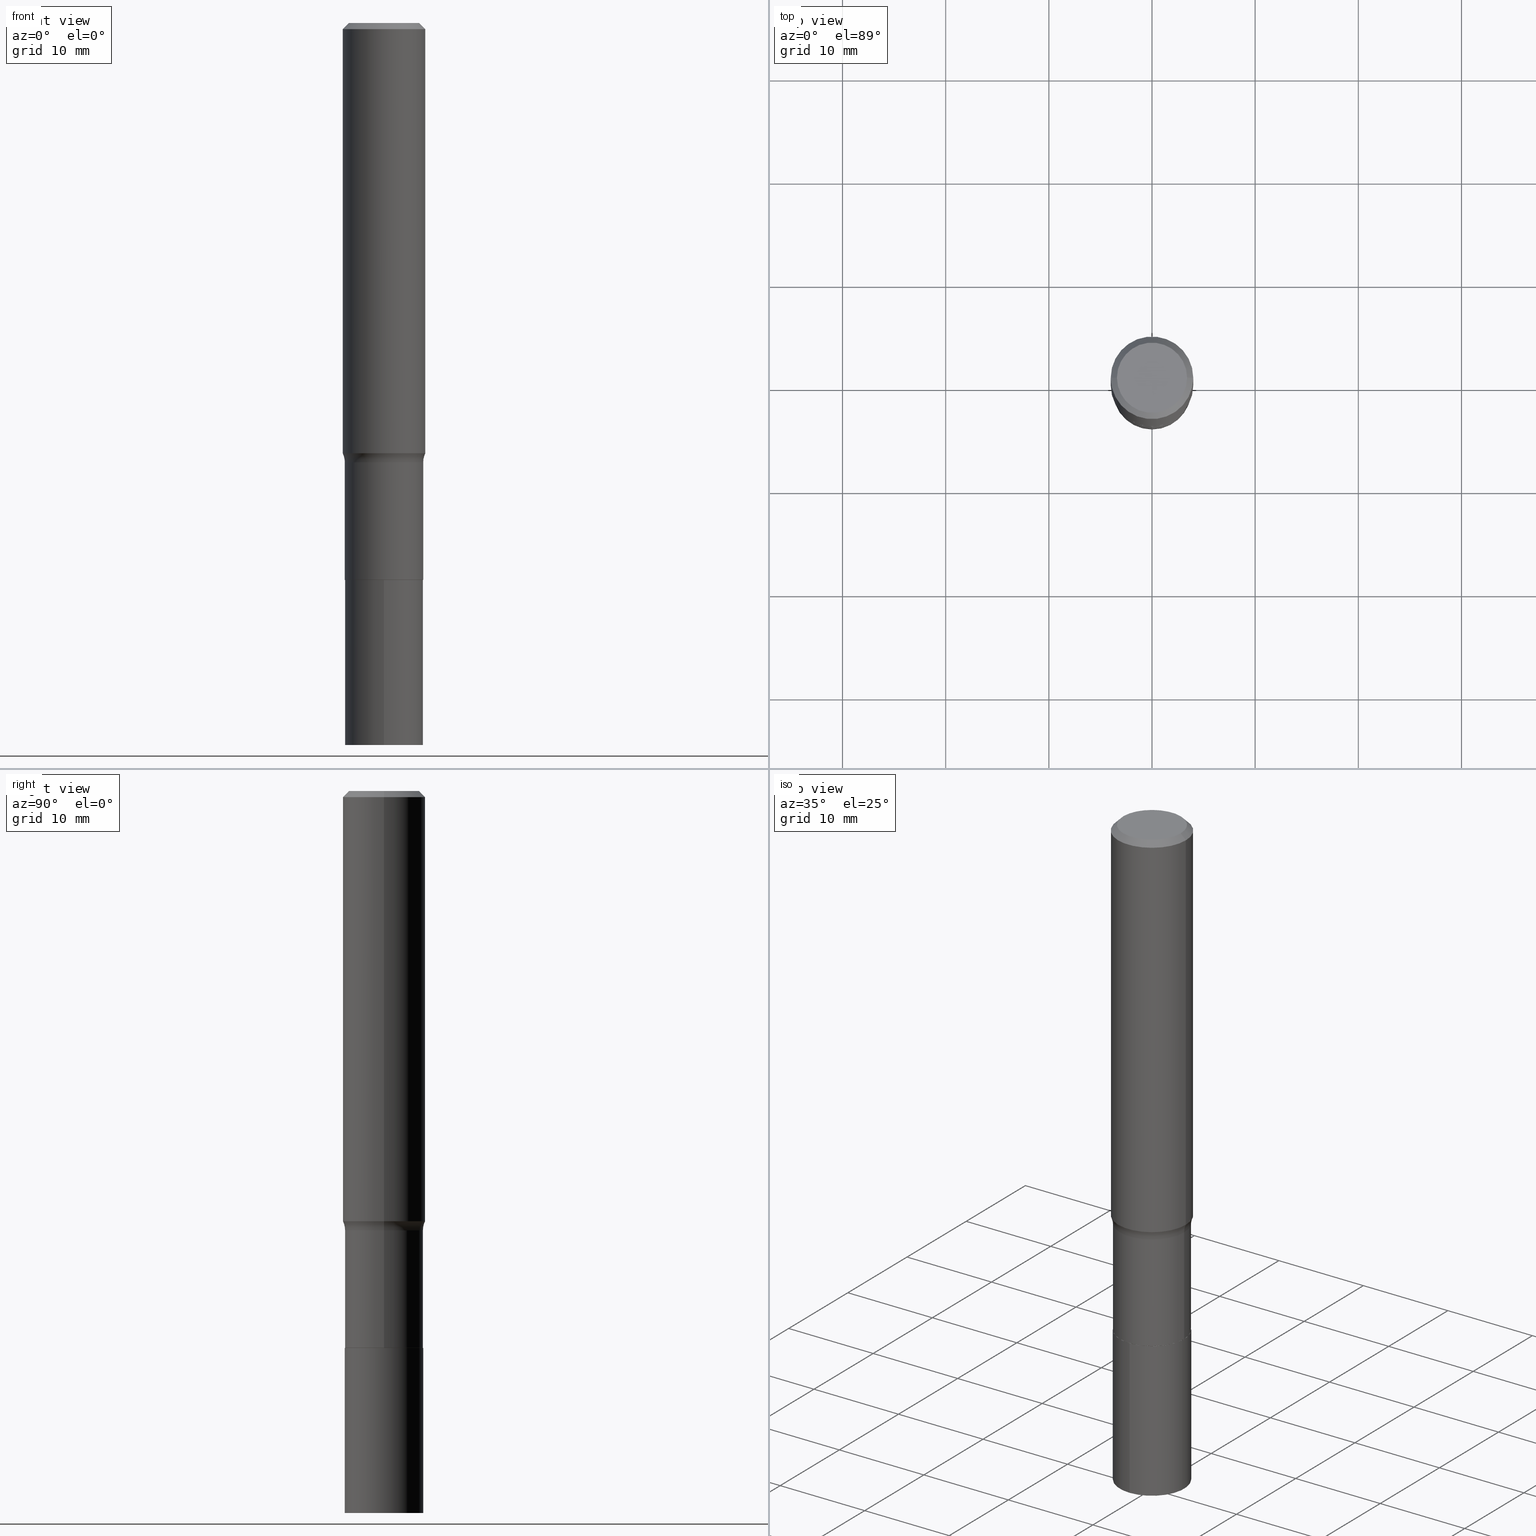
[diagram: canonical four-view strip — front | top / right | iso, engineering-drawing reading convention]
A machine part, canonical four-view strip (front | top / right | iso — engineering-drawing reading convention). The complete STEP part file that produces these views, byte-faithful:
ISO-10303-21;
HEADER;
FILE_DESCRIPTION (( 'STEP AP203' ),
    '1' );
FILE_NAME ('67123.STEP',
    '2024-04-19T15:56:53',
    ( '' ),
    ( '' ),
    'SwSTEP 2.0',
    'SolidWorks 2023',
    '' );
FILE_SCHEMA (( 'CONFIG_CONTROL_DESIGN' ));
ENDSEC;

DATA;
#1 = AXIS2_PLACEMENT_3D ( 'NONE', #248, #313, #391 ) ;
#2 = AXIS2_PLACEMENT_3D ( 'NONE', #367, #444, #231 ) ;
#3 = CYLINDRICAL_SURFACE ( 'NONE', #328, 0.1496000000000000107 ) ;
#4 = DIRECTION ( 'NONE',  ( 6.982962677686265922E-15, 1.000000000000000000, -3.490985253093755902E-15 ) ) ;
#5 = EDGE_CURVE ( 'NONE', #71, #396, #48, .T. ) ;
#6 = ORIENTED_EDGE ( 'NONE', *, *, #347, .T. ) ;
#7 = AXIS2_PLACEMENT_3D ( 'NONE', #428, #355, #100 ) ;
#8 = EDGE_LOOP ( 'NONE', ( #465, #324, #400, #82 ) ) ;
#9 = EDGE_CURVE ( 'NONE', #314, #416, #275, .T. ) ;
#10 = CALENDAR_DATE ( 2024, 19, 4 ) ;
#11 = CARTESIAN_POINT ( 'NONE',  ( -1.002970424325035327E-46, 1.431975951230899223E-32, 4.101342130344493665E-18 ) ) ;
#12 = PERSON_AND_ORGANIZATION ( #64, #301 ) ;
#13 =( LENGTH_UNIT ( ) NAMED_UNIT ( * ) SI_UNIT ( $, .METRE. ) );
#14 = ADVANCED_FACE ( 'NONE', ( #234 ), #419, .F. ) ;
#15 = CIRCLE ( 'NONE', #65, 0.1575000000000000011 ) ;
#16 = AXIS2_PLACEMENT_3D ( 'NONE', #349, #31, #140 ) ;
#17 = EDGE_CURVE ( 'NONE', #56, #340, #242, .T. ) ;
#18 = APPROVAL_STATUS ( 'not_yet_approved' ) ;
#19 = ADVANCED_FACE ( 'NONE', ( #129 ), #281, .F. ) ;
#20 = VERTEX_POINT ( 'NONE', #323 ) ;
#21 = AXIS2_PLACEMENT_3D ( 'NONE', #429, #68, #319 ) ;
#22 = VECTOR ( 'NONE', #354, 39.37007874015748143 ) ;
#23 = CC_DESIGN_PERSON_AND_ORGANIZATION_ASSIGNMENT ( #12, #307, ( #58 ) ) ;
#24 = DATE_TIME_ROLE ( 'creation_date' ) ;
#25 = PRODUCT_DEFINITION_SHAPE ( 'NONE', 'NONE',  #309 ) ;
#26 = DIRECTION ( 'NONE',  ( 1.000000000000000000, -6.982962677686266711E-15, 4.876170806578254279E-29 ) ) ;
#27 = ORIENTED_EDGE ( 'NONE', *, *, #202, .T. ) ;
#28 = CARTESIAN_POINT ( 'NONE',  ( 6.739685724306814341E-29, -9.621860887695710828E-15, -2.755900000000000460 ) ) ;
#29 = DIRECTION ( 'NONE',  ( -2.445468806185136597E-29, 3.491481338843145583E-15, 1.000000000000000000 ) ) ;
#30 = EDGE_LOOP ( 'NONE', ( #139, #194 ) ) ;
#31 = DIRECTION ( 'NONE',  ( -2.445468806185136597E-29, 3.491481338843145583E-15, 1.000000000000000000 ) ) ;
#32 = AXIS2_PLACEMENT_3D ( 'NONE', #96, #123, #26 ) ;
#33 = AXIS2_PLACEMENT_3D ( 'NONE', #193, #449, #114 ) ;
#34 = FACE_OUTER_BOUND ( 'NONE', #219, .T. ) ;
#35 = EDGE_LOOP ( 'NONE', ( #426, #6, #84, #290 ) ) ;
#36 = LINE ( 'NONE', #72, #44 ) ;
#37 = FACE_OUTER_BOUND ( 'NONE', #89, .T. ) ;
#38 = ORIENTED_EDGE ( 'NONE', *, *, #202, .F. ) ;
#39 = DIRECTION ( 'NONE',  ( -2.445468806185136597E-29, 3.491481338843145583E-15, 1.000000000000000000 ) ) ;
#40 = ADVANCED_FACE ( 'NONE', ( #457 ), #98, .T. ) ;
#41 = DIRECTION ( 'NONE',  ( 0.7071067811866199593, -2.468850131083015945E-15, 0.7071067811864750752 ) ) ;
#42 = EDGE_LOOP ( 'NONE', ( #249, #363 ) ) ;
#43 = DIRECTION ( 'NONE',  ( -2.445815221012428849E-29, 3.490985253093755902E-15, 1.000000000000000000 ) ) ;
#44 = VECTOR ( 'NONE', #463, 39.37007874015748143 ) ;
#45 = AXIS2_PLACEMENT_3D ( 'NONE', #393, #285, #4 ) ;
#46 = DIRECTION ( 'NONE',  ( -1.000000000000000000, 6.982962677686265922E-15, 0.000000000000000000 ) ) ;
#47 = APPROVAL_ROLE ( '' ) ;
#48 = CIRCLE ( 'NONE', #32, 0.1338749999999999940 ) ;
#49 = SECURITY_CLASSIFICATION ( '', '', #69 ) ;
#50 = CARTESIAN_POINT ( 'NONE',  ( -5.014852121625176635E-47, 7.159879756154496113E-33, 2.050671065172246833E-18 ) ) ;
#51 = EDGE_LOOP ( 'NONE', ( #294, #299 ) ) ;
#52 = EDGE_CURVE ( 'NONE', #445, #454, #216, .T. ) ;
#53 = DIRECTION ( 'NONE',  ( -6.982962677686265922E-15, -1.000000000000000000, 3.652203200085913145E-15 ) ) ;
#54 = ORIENTED_EDGE ( 'NONE', *, *, #52, .F. ) ;
#55 = EDGE_CURVE ( 'NONE', #56, #454, #368, .T. ) ;
#56 = VERTEX_POINT ( 'NONE', #169 ) ;
#57 = AXIS2_PLACEMENT_3D ( 'NONE', #397, #80, #325 ) ;
#58 = PRODUCT ( '67123', '67123', '', ( #438 ) ) ;
#59 =( NAMED_UNIT ( * ) SI_UNIT ( $, .STERADIAN. ) SOLID_ANGLE_UNIT ( ) );
#60 = APPLICATION_CONTEXT ( 'configuration controlled 3d designs of mechanical parts and assemblies' ) ;
#61 = PERSON_AND_ORGANIZATION ( #64, #301 ) ;
#62 = CARTESIAN_POINT ( 'NONE',  ( -2.889590295502486739E-30, -1.968728022083459576E-14, -2.755900000000000016 ) ) ;
#63 = PERSON_AND_ORGANIZATION_ROLE ( 'creator' ) ;
#64 = PERSON ( 'UNSPECIFIED', 'UNSPECIFIED', 'UNSPECIFIED', ('UNSPECIFIED'), ('UNSPECIFIED'), ('UNSPECIFIED') ) ;
#65 = AXIS2_PLACEMENT_3D ( 'NONE', #212, #398, #352 ) ;
#66 = VECTOR ( 'NONE', #43, 39.37007874015748143 ) ;
#67 = PERSON_AND_ORGANIZATION_ROLE ( 'design_supplier' ) ;
#68 = DIRECTION ( 'NONE',  ( -6.982962677686266711E-15, -1.000000000000000000, 3.491481338843145583E-15 ) ) ;
#69 = SECURITY_CLASSIFICATION_LEVEL ( 'unclassified' ) ;
#70 = DIRECTION ( 'NONE',  ( 2.445468806185136597E-29, -3.491481338843145583E-15, -1.000000000000000000 ) ) ;
#71 = VERTEX_POINT ( 'NONE', #166 ) ;
#72 = CARTESIAN_POINT ( 'NONE',  ( -0.1575000000000000844, 1.119104808822158392E-15, -7.747322767151481189E-30 ) ) ;
#73 = DIRECTION ( 'NONE',  ( -1.000000000000000000, 6.982962677686265922E-15, 0.000000000000000000 ) ) ;
#74 = ORIENTED_EDGE ( 'NONE', *, *, #9, .T. ) ;
#75 = CARTESIAN_POINT ( 'NONE',  ( -0.1496000000000000107, -5.575032388711477512E-15, -2.125399999999999956 ) ) ;
#76 = AXIS2_PLACEMENT_3D ( 'NONE', #111, #461, #135 ) ;
#77 = PRODUCT_DEFINITION_FORMATION_WITH_SPECIFIED_SOURCE ( 'ANY', '', #58, .NOT_KNOWN. ) ;
#78 = CARTESIAN_POINT ( 'NONE',  ( 4.016281559428142167E-29, -5.734185641958091798E-15, -1.642336041772468835 ) ) ;
#79 = ORIENTED_EDGE ( 'NONE', *, *, #405, .F. ) ;
#80 = DIRECTION ( 'NONE',  ( -2.445468806185136597E-29, 3.491481338843145583E-15, 1.000000000000000000 ) ) ;
#81 = DIRECTION ( 'NONE',  ( 1.000000000000000000, -6.982962677686265133E-15, 0.000000000000000000 ) ) ;
#82 = ORIENTED_EDGE ( 'NONE', *, *, #335, .F. ) ;
#83 = DIRECTION ( 'NONE',  ( -6.982962677686265922E-15, -1.000000000000000000, 3.652203200085913145E-15 ) ) ;
#84 = ORIENTED_EDGE ( 'NONE', *, *, #17, .T. ) ;
#85 = CARTESIAN_POINT ( 'NONE',  ( 5.198822135068982087E-29, -7.422540178246643119E-15, -2.125899999999999679 ) ) ;
#86 = TOROIDAL_SURFACE ( 'NONE', #268, 0.2295999999999999985, 0.08000000000000002942 ) ;
#87 = APPROVAL ( #18, 'UNSPECIFIED' ) ;
#88 = ORIENTED_EDGE ( 'NONE', *, *, #312, .T. ) ;
#89 = EDGE_LOOP ( 'NONE', ( #317, #88, #266, #184 ) ) ;
#90 = ORIENTED_EDGE ( 'NONE', *, *, #343, .F. ) ;
#91 = CIRCLE ( 'NONE', #195, 0.1496000000000000107 ) ;
#92 = CARTESIAN_POINT ( 'NONE',  ( -0.1495999999999999830, 1.062971932697109757E-15, -7.358726895021338760E-30 ) ) ;
#93 = AXIS2_PLACEMENT_3D ( 'NONE', #239, #200, #333 ) ;
#94 = CALENDAR_DATE ( 2024, 19, 4 ) ;
#95 = EDGE_CURVE ( 'NONE', #454, #416, #203, .T. ) ;
#96 = CARTESIAN_POINT ( 'NONE',  ( -1.002970424325035327E-46, 1.431975951230899223E-32, 4.101342130344493665E-18 ) ) ;
#97 = CARTESIAN_POINT ( 'NONE',  ( 1.062971932697177205E-15, 0.1495999999999925723, -2.125900000000000567 ) ) ;
#98 = CONICAL_SURFACE ( 'NONE', #228, 0.1575000000000000011, 0.7853981633974447263 ) ;
#99 = PERSON_AND_ORGANIZATION ( #64, #301 ) ;
#100 = DIRECTION ( 'NONE',  ( 1.000000000000000000, -6.982962677686266711E-15, 4.883557194083112901E-29 ) ) ;
#101 = APPROVAL ( #128, 'UNSPECIFIED' ) ;
#102 = LINE ( 'NONE', #262, #306 ) ;
#103 = LINE ( 'NONE', #432, #125 ) ;
#104 = ORIENTED_EDGE ( 'NONE', *, *, #110, .F. ) ;
#105 = DIRECTION ( 'NONE',  ( 1.000000000000000000, -6.982962677686266711E-15, 4.876176775795936353E-29 ) ) ;
#106 = CARTESIAN_POINT ( 'NONE',  ( -0.1491000000000000103, -6.360471732054222467E-15, -2.125899999999999679 ) ) ;
#107 = ORIENTED_EDGE ( 'NONE', *, *, #187, .F. ) ;
#108 = FACE_OUTER_BOUND ( 'NONE', #364, .T. ) ;
#109 = AXIS2_PLACEMENT_3D ( 'NONE', #220, #39, #137 ) ;
#110 = EDGE_CURVE ( 'NONE', #340, #442, #15, .T. ) ;
#111 = CARTESIAN_POINT ( 'NONE',  ( 0.000000000000000000, 0.000000000000000000, 0.000000000000000000 ) ) ;
#112 = DIRECTION ( 'NONE',  ( -2.445468806185136597E-29, 3.491481338843145583E-15, 1.000000000000000000 ) ) ;
#113 = DIRECTION ( 'NONE',  ( 1.000000000000000000, -6.982962677686266711E-15, 4.876170806578254279E-29 ) ) ;
#114 = DIRECTION ( 'NONE',  ( 1.000000000000000000, -6.982962677686265922E-15, 0.000000000000000000 ) ) ;
#115 = EDGE_CURVE ( 'NONE', #176, #407, #91, .T. ) ;
#116 = ORIENTED_EDGE ( 'NONE', *, *, #279, .F. ) ;
#117 = EDGE_CURVE ( 'NONE', #20, #118, #420, .T. ) ;
#118 = VERTEX_POINT ( 'NONE', #106 ) ;
#119 = DATE_AND_TIME ( #10, #277 ) ;
#120 = AXIS2_PLACEMENT_3D ( 'NONE', #215, #179, #174 ) ;
#121 =( CONVERSION_BASED_UNIT ( 'INCH', #448 ) LENGTH_UNIT ( ) NAMED_UNIT ( #403 ) );
#122 = EDGE_LOOP ( 'NONE', ( #217, #356, #423, #320 ) ) ;
#123 = DIRECTION ( 'NONE',  ( -2.445468806185136597E-29, 3.491481338843145583E-15, 1.000000000000000000 ) ) ;
#124 = CALENDAR_DATE ( 2024, 19, 4 ) ;
#125 = VECTOR ( 'NONE', #41, 39.37007874015748143 ) ;
#126 = VERTEX_POINT ( 'NONE', #348 ) ;
#127 = CIRCLE ( 'NONE', #33, 0.1575000000000000011 ) ;
#128 = APPROVAL_STATUS ( 'not_yet_approved' ) ;
#129 = FACE_OUTER_BOUND ( 'NONE', #51, .T. ) ;
#130 = CARTESIAN_POINT ( 'NONE',  ( 5.777420054612422856E-31, -8.248624663016985234E-17, -0.02362500000000015629 ) ) ;
#131 = ADVANCED_FACE ( 'NONE', ( #34 ), #170, .T. ) ;
#132 = AXIS2_PLACEMENT_3D ( 'NONE', #302, #146, #46 ) ;
#133 = ORIENTED_EDGE ( 'NONE', *, *, #388, .T. ) ;
#134 = DIRECTION ( 'NONE',  ( 1.000000000000000000, -6.982962677686265922E-15, 0.000000000000000000 ) ) ;
#135 = DIRECTION ( 'NONE',  ( 1.000000000000000000, -6.982962677686266711E-15, 4.876176775795936353E-29 ) ) ;
#136 = UNCERTAINTY_MEASURE_WITH_UNIT (LENGTH_MEASURE( 1.000000000000000082E-05 ), #121, 'distance_accuracy_value', 'NONE');
#137 = DIRECTION ( 'NONE',  ( 1.000000000000000000, -6.982962677686267499E-15, 4.876176775795936353E-29 ) ) ;
#138 = DIRECTION ( 'NONE',  ( 1.000000000000000000, -6.982962677686265133E-15, 0.000000000000000000 ) ) ;
#139 = ORIENTED_EDGE ( 'NONE', *, *, #279, .T. ) ;
#140 = DIRECTION ( 'NONE',  ( 1.000000000000000000, -6.982962677686268288E-15, 0.000000000000000000 ) ) ;
#141 = DIRECTION ( 'NONE',  ( -2.445815221012428849E-29, 3.490985253093755902E-15, 1.000000000000000000 ) ) ;
#142 = EDGE_LOOP ( 'NONE', ( #371, #360, #225, #303 ) ) ;
#143 = DIRECTION ( 'NONE',  ( 1.000000000000000000, -6.982962677686265133E-15, 0.000000000000000000 ) ) ;
#144 = CARTESIAN_POINT ( 'NONE',  ( 5.198822135068982087E-29, -7.422540178246643119E-15, -2.125899999999999679 ) ) ;
#145 = DIRECTION ( 'NONE',  ( 0.7071067811865450192, -7.319954787623246579E-15, -0.7071067811865500152 ) ) ;
#146 = DIRECTION ( 'NONE',  ( 2.445468806185136597E-29, -3.491481338843145583E-15, -1.000000000000000000 ) ) ;
#147 = ORIENTED_EDGE ( 'NONE', *, *, #399, .F. ) ;
#148 = CARTESIAN_POINT ( 'NONE',  ( 0.000000000000000000, 0.000000000000000000, 0.000000000000000000 ) ) ;
#149 = CLOSED_SHELL ( 'NONE', ( #131, #40, #383, #271, #183, #326, #161, #240, #221, #462, #19, #410 ) ) ;
#150 = CC_DESIGN_APPROVAL ( #412, ( #309 ) ) ;
#151 = CYLINDRICAL_SURFACE ( 'NONE', #413, 0.1575000000000000844 ) ;
#152 = DIRECTION ( 'NONE',  ( -2.445468806185136597E-29, 3.491481338843145583E-15, 1.000000000000000000 ) ) ;
#153 = ORIENTED_EDGE ( 'NONE', *, *, #366, .F. ) ;
#154 = CC_DESIGN_PERSON_AND_ORGANIZATION_ASSIGNMENT ( #61, #67, ( #77 ) ) ;
#155 = PERSON_AND_ORGANIZATION ( #64, #301 ) ;
#156 = CARTESIAN_POINT ( 'NONE',  ( 4.101051187972474781E-29, -5.855214205239955684E-15, -1.677000000000000268 ) ) ;
#157 = CONICAL_SURFACE ( 'NONE', #132, 0.1575000000000000011, 0.7853981633974447263 ) ;
#158 = AXIS2_PLACEMENT_3D ( 'NONE', #85, #177, #466 ) ;
#159 = DESIGN_CONTEXT ( 'detailed design', #60, 'design' ) ;
#160 = APPROVAL_DATE_TIME ( #163, #101 ) ;
#161 = ADVANCED_FACE ( 'NONE', ( #246 ), #235, .F. ) ;
#162 = LOCAL_TIME ( 11, 56, 53.00000000000000000, #168 ) ;
#163 = DATE_AND_TIME ( #94, #186 ) ;
#164 = DIRECTION ( 'NONE',  ( -2.445468806185136877E-29, 3.491481338843145188E-15, 1.000000000000000000 ) ) ;
#165 = DATE_AND_TIME ( #124, #162 ) ;
#166 = CARTESIAN_POINT ( 'NONE',  ( 0.1338749999999999940, -1.040731925365424925E-15, 4.101342130351401591E-18 ) ) ;
#167 = DIRECTION ( 'NONE',  ( 7.105427357601001859E-15, 1.000000000000000000, -3.491481338843145583E-15 ) ) ;
#168 = COORDINATED_UNIVERSAL_TIME_OFFSET ( 5, 0, .BEHIND. ) ;
#169 = CARTESIAN_POINT ( 'NONE',  ( 0.1575000000000001954, -6.834002263693680067E-15, -1.642336041772468835 ) ) ;
#170 = CONICAL_SURFACE ( 'NONE', #267, 0.1491000000000000103, 0.7853981633975507526 ) ;
#171 = ORIENTED_EDGE ( 'NONE', *, *, #197, .T. ) ;
#172 = CARTESIAN_POINT ( 'NONE',  ( 0.1575000000000000011, -1.182302868365756679E-15, -0.02362500000000015629 ) ) ;
#173 = ORIENTED_EDGE ( 'NONE', *, *, #115, .T. ) ;
#174 = DIRECTION ( 'NONE',  ( 1.000000000000000000, -6.982962677686268288E-15, 0.000000000000000000 ) ) ;
#175 = DIRECTION ( 'NONE',  ( -0.7071067811865450192, 2.468850131082230634E-15, -0.7071067811865500152 ) ) ;
#176 = VERTEX_POINT ( 'NONE', #97 ) ;
#177 = DIRECTION ( 'NONE',  ( -2.445815221012428849E-29, 3.490985253093755902E-15, 1.000000000000000000 ) ) ;
#178 = DIRECTION ( 'NONE',  ( -6.982962677686265922E-15, -1.000000000000000000, 3.652203200085913145E-15 ) ) ;
#179 = DIRECTION ( 'NONE',  ( -2.445468806185136597E-29, 3.491481338843145583E-15, 1.000000000000000000 ) ) ;
#180 = AXIS2_PLACEMENT_3D ( 'NONE', #250, #253, #134 ) ;
#181 = EDGE_CURVE ( 'NONE', #433, #176, #437, .T. ) ;
#182 = ADVANCED_BREP_SHAPE_REPRESENTATION ( '67123', ( #456, #310, #93 ), #377 ) ;
#183 = ADVANCED_FACE ( 'NONE', ( #345 ), #359, .T. ) ;
#184 = ORIENTED_EDGE ( 'NONE', *, *, #115, .F. ) ;
#185 = CIRCLE ( 'NONE', #283, 0.1575000000000001954 ) ;
#186 = LOCAL_TIME ( 11, 56, 53.00000000000000000, #276 ) ;
#187 = EDGE_CURVE ( 'NONE', #20, #445, #103, .T. ) ;
#188 = DIRECTION ( 'NONE',  ( 2.438088387897960049E-29, -3.491481338843145188E-15, -1.000000000000000000 ) ) ;
#189 = FACE_OUTER_BOUND ( 'NONE', #122, .T. ) ;
#190 = ORIENTED_EDGE ( 'NONE', *, *, #322, .F. ) ;
#191 = PERSON_AND_ORGANIZATION_ROLE ( 'creator' ) ;
#192 = DIRECTION ( 'NONE',  ( -1.000000000000000000, 6.982962677686265922E-15, -4.876176775795935793E-29 ) ) ;
#193 = CARTESIAN_POINT ( 'NONE',  ( 5.777420054612422856E-31, -8.248624663016985234E-17, -0.02362500000000015629 ) ) ;
#194 = ORIENTED_EDGE ( 'NONE', *, *, #5, .T. ) ;
#195 = AXIS2_PLACEMENT_3D ( 'NONE', #389, #209, #178 ) ;
#196 = CONICAL_SURFACE ( 'NONE', #57, 0.1491000000000000103, 0.7853981633975507526 ) ;
#197 = EDGE_CURVE ( 'NONE', #396, #442, #251, .T. ) ;
#198 = CC_DESIGN_PERSON_AND_ORGANIZATION_ASSIGNMENT ( #282, #63, ( #77 ) ) ;
#199 = DATE_AND_TIME ( #418, #308 ) ;
#200 = DIRECTION ( 'NONE',  ( 0.000000000000000000, 0.000000000000000000, 1.000000000000000000 ) ) ;
#201 = DIRECTION ( 'NONE',  ( -2.445815221012428288E-29, 3.490985253093755902E-15, 1.000000000000000000 ) ) ;
#202 = EDGE_CURVE ( 'NONE', #56, #126, #185, .T. ) ;
#203 = CIRCLE ( 'NONE', #376, 0.1495999999999999552 ) ;
#204 = CARTESIAN_POINT ( 'NONE',  ( 0.1575000000000000844, -1.099816621735587677E-15, 7.679978421878603638E-30 ) ) ;
#205 = AXIS2_PLACEMENT_3D ( 'NONE', #28, #318, #83 ) ;
#206 = ADVANCED_FACE ( 'NONE', ( #37 ), #3, .T. ) ;
#207 = CARTESIAN_POINT ( 'NONE',  ( 4.101051187972474781E-29, -5.855214205239955684E-15, -1.677000000000000268 ) ) ;
#208 = PERSON_AND_ORGANIZATION ( #64, #301 ) ;
#209 = DIRECTION ( 'NONE',  ( -2.445815221012428849E-29, 3.490985253093755902E-15, 1.000000000000000000 ) ) ;
#210 = ORIENTED_EDGE ( 'NONE', *, *, #9, .F. ) ;
#211 = CARTESIAN_POINT ( 'NONE',  ( -0.1338749999999999940, 9.760872517903331886E-16, 4.101342130337811459E-18 ) ) ;
#212 = CARTESIAN_POINT ( 'NONE',  ( 5.777420054612422856E-31, -8.248624663016985234E-17, -0.02362500000000015629 ) ) ;
#213 = AXIS2_PLACEMENT_3D ( 'NONE', #292, #29, #81 ) ;
#214 = CIRCLE ( 'NONE', #247, 0.1495999999999999552 ) ;
#215 = CARTESIAN_POINT ( 'NONE',  ( 5.197599400665889285E-29, -7.420794437577220826E-15, -2.125399999999999956 ) ) ;
#216 = LINE ( 'NONE', #387, #316 ) ;
#217 = ORIENTED_EDGE ( 'NONE', *, *, #347, .F. ) ;
#218 = DIRECTION ( 'NONE',  ( -2.445468806185136597E-29, 3.491481338843145583E-15, 1.000000000000000000 ) ) ;
#219 = EDGE_LOOP ( 'NONE', ( #280, #272, #415, #107 ) ) ;
#220 = CARTESIAN_POINT ( 'NONE',  ( 0.000000000000000000, 0.000000000000000000, 0.000000000000000000 ) ) ;
#221 = ADVANCED_FACE ( 'NONE', ( #263 ), #157, .T. ) ;
#222 = CIRCLE ( 'NONE', #16, 0.1496000000000000107 ) ;
#223 = APPLICATION_PROTOCOL_DEFINITION ( 'international standard', 'config_control_design', 1994, #60 ) ;
#224 = DIRECTION ( 'NONE',  ( -2.445468806185136597E-29, 3.491481338843145583E-15, 1.000000000000000000 ) ) ;
#225 = ORIENTED_EDGE ( 'NONE', *, *, #110, .T. ) ;
#226 = DIRECTION ( 'NONE',  ( 1.000000000000000000, -6.982962677686266711E-15, 4.883557194083112901E-29 ) ) ;
#227 = EDGE_LOOP ( 'NONE', ( #450, #74, #458, #54 ) ) ;
#228 = AXIS2_PLACEMENT_3D ( 'NONE', #130, #70, #73 ) ;
#229 = CC_DESIGN_SECURITY_CLASSIFICATION ( #49, ( #77 ) ) ;
#230 = PLANE ( 'NONE',  #264 ) ;
#231 = DIRECTION ( 'NONE',  ( -6.982962677686265922E-15, -1.000000000000000000, 3.652203200085913145E-15 ) ) ;
#232 = ORIENTED_EDGE ( 'NONE', *, *, #417, .T. ) ;
#233 = DIRECTION ( 'NONE',  ( -2.445815221012428849E-29, 3.490985253093755902E-15, 1.000000000000000000 ) ) ;
#234 = FACE_OUTER_BOUND ( 'NONE', #42, .T. ) ;
#235 = TOROIDAL_SURFACE ( 'NONE', #7, 0.2295999999999999985, 0.08000000000000002942 ) ;
#236 = APPROVAL_DATE_TIME ( #165, #87 ) ;
#237 = CIRCLE ( 'NONE', #120, 0.1496000000000000107 ) ;
#238 = COORDINATED_UNIVERSAL_TIME_OFFSET ( 5, 0, .BEHIND. ) ;
#239 = CARTESIAN_POINT ( 'NONE',  ( 0.000000000000000000, 0.000000000000000000, 0.000000000000000000 ) ) ;
#240 = ADVANCED_FACE ( 'NONE', ( #298 ), #151, .T. ) ;
#241 = SHAPE_DEFINITION_REPRESENTATION ( #25, #182 ) ;
#242 = LINE ( 'NONE', #204, #300 ) ;
#243 = CC_DESIGN_PERSON_AND_ORGANIZATION_ASSIGNMENT ( #414, #191, ( #309 ) ) ;
#244 = CALENDAR_DATE ( 2024, 19, 4 ) ;
#245 = VECTOR ( 'NONE', #255, 39.37007874015748143 ) ;
#246 = FACE_OUTER_BOUND ( 'NONE', #446, .T. ) ;
#247 = AXIS2_PLACEMENT_3D ( 'NONE', #431, #112, #459 ) ;
#248 = CARTESIAN_POINT ( 'NONE',  ( 5.198822135068982087E-29, -7.422540178246643119E-15, -2.125899999999999679 ) ) ;
#249 = ORIENTED_EDGE ( 'NONE', *, *, #259, .F. ) ;
#250 = CARTESIAN_POINT ( 'NONE',  ( 4.016281559428142167E-29, -5.734185641958091798E-15, -1.642336041772468835 ) ) ;
#251 = LINE ( 'NONE', #395, #394 ) ;
#252 = ORIENTED_EDGE ( 'NONE', *, *, #55, .T. ) ;
#253 = DIRECTION ( 'NONE',  ( -2.445468806185136597E-29, 3.491481338843145583E-15, 1.000000000000000000 ) ) ;
#254 = CC_DESIGN_PERSON_AND_ORGANIZATION_ASSIGNMENT ( #99, #381, ( #49 ) ) ;
#255 = DIRECTION ( 'NONE',  ( -2.445815221012428849E-29, 3.490985253093755902E-15, 1.000000000000000000 ) ) ;
#256 = CC_DESIGN_APPROVAL ( #101, ( #77 ) ) ;
#257 = CARTESIAN_POINT ( 'NONE',  ( -1.044651216581813339E-15, -0.1496000000000074215, -2.125899999999999235 ) ) ;
#258 = DIRECTION ( 'NONE',  ( -2.445468806185136597E-29, 3.491481338843145583E-15, 1.000000000000000000 ) ) ;
#259 = EDGE_CURVE ( 'NONE', #439, #433, #443, .T. ) ;
#260 = DIRECTION ( 'NONE',  ( -2.445468806185136597E-29, 3.491481338843145583E-15, 1.000000000000000000 ) ) ;
#261 = ORIENTED_EDGE ( 'NONE', *, *, #187, .T. ) ;
#262 = CARTESIAN_POINT ( 'NONE',  ( 0.1575000000000000011, -1.163014681279185964E-15, -0.02362500000000015629 ) ) ;
#263 = FACE_OUTER_BOUND ( 'NONE', #353, .T. ) ;
#264 = AXIS2_PLACEMENT_3D ( 'NONE', #50, #188, #192 ) ;
#265 = ORIENTED_EDGE ( 'NONE', *, *, #95, .T. ) ;
#266 = ORIENTED_EDGE ( 'NONE', *, *, #335, .T. ) ;
#267 = AXIS2_PLACEMENT_3D ( 'NONE', #286, #218, #138 ) ;
#268 = AXIS2_PLACEMENT_3D ( 'NONE', #156, #152, #226 ) ;
#269 = APPROVAL_DATE_TIME ( #119, #412 ) ;
#270 = ORIENTED_EDGE ( 'NONE', *, *, #17, .F. ) ;
#271 = ADVANCED_FACE ( 'NONE', ( #189 ), #86, .F. ) ;
#272 = ORIENTED_EDGE ( 'NONE', *, *, #343, .T. ) ;
#273 = CARTESIAN_POINT ( 'NONE',  ( 0.1495999999999999552, -6.899865421821820496E-15, -1.677000000000000268 ) ) ;
#274 = CARTESIAN_POINT ( 'NONE',  ( 1.062971932697169513E-15, 0.1495999999999903796, -2.755900000000000905 ) ) ;
#275 = LINE ( 'NONE', #92, #304 ) ;
#276 = COORDINATED_UNIVERSAL_TIME_OFFSET ( 5, 0, .BEHIND. ) ;
#277 = LOCAL_TIME ( 11, 56, 53.00000000000000000, #339 ) ;
#278 = APPROVAL_ROLE ( '' ) ;
#279 = EDGE_CURVE ( 'NONE', #396, #71, #447, .T. ) ;
#280 = ORIENTED_EDGE ( 'NONE', *, *, #117, .T. ) ;
#281 = PLANE ( 'NONE',  #1 ) ;
#282 = PERSON_AND_ORGANIZATION ( #64, #301 ) ;
#283 = AXIS2_PLACEMENT_3D ( 'NONE', #78, #327, #467 ) ;
#284 = DIRECTION ( 'NONE',  ( -2.445468806185136877E-29, 3.491481338843145188E-15, 1.000000000000000000 ) ) ;
#285 = DIRECTION ( 'NONE',  ( 2.445815221012428288E-29, -3.490985253093755902E-15, -1.000000000000000000 ) ) ;
#286 = CARTESIAN_POINT ( 'NONE',  ( 5.198822135068982087E-29, -7.422540178246643119E-15, -2.125899999999999679 ) ) ;
#287 = CARTESIAN_POINT ( 'NONE',  ( -0.2295999999999999985, -4.223808083934765470E-15, -1.677000000000000268 ) ) ;
#288 = CYLINDRICAL_SURFACE ( 'NONE', #406, 0.1496000000000000107 ) ;
#289 = CARTESIAN_POINT ( 'NONE',  ( 1.062971932697161822E-15, 0.1495999999999925723, -2.125900000000000567 ) ) ;
#290 = ORIENTED_EDGE ( 'NONE', *, *, #417, .F. ) ;
#291 = CARTESIAN_POINT ( 'NONE',  ( -1.044651216581813339E-15, -0.1496000000000074215, -2.125899999999999235 ) ) ;
#292 = CARTESIAN_POINT ( 'NONE',  ( 5.198822135068982087E-29, -7.422540178246643119E-15, -2.125899999999999679 ) ) ;
#293 = AXIS2_PLACEMENT_3D ( 'NONE', #358, #441, #143 ) ;
#294 = ORIENTED_EDGE ( 'NONE', *, *, #117, .F. ) ;
#295 = PRODUCT_RELATED_PRODUCT_CATEGORY ( 'detail', '', ( #58 ) ) ;
#296 = DIRECTION ( 'NONE',  ( -6.982962677686265922E-15, -1.000000000000000000, 3.652203200085913145E-15 ) ) ;
#297 = LINE ( 'NONE', #331, #22 ) ;
#298 = FACE_OUTER_BOUND ( 'NONE', #35, .T. ) ;
#299 = ORIENTED_EDGE ( 'NONE', *, *, #378, .F. ) ;
#300 = VECTOR ( 'NONE', #164, 39.37007874015748143 ) ;
#301 = ORGANIZATION ( 'UNSPECIFIED', 'UNSPECIFIED', '' ) ;
#302 = CARTESIAN_POINT ( 'NONE',  ( 5.777420054612422856E-31, -8.248624663016985234E-17, -0.02362500000000015629 ) ) ;
#303 = ORIENTED_EDGE ( 'NONE', *, *, #197, .F. ) ;
#304 = VECTOR ( 'NONE', #380, 39.37007874015748143 ) ;
#305 = CIRCLE ( 'NONE', #293, 0.1491000000000000103 ) ;
#306 = VECTOR ( 'NONE', #145, 39.37007874015748143 ) ;
#307 = PERSON_AND_ORGANIZATION_ROLE ( 'design_owner' ) ;
#308 = LOCAL_TIME ( 11, 56, 53.00000000000000000, #344 ) ;
#309 = PRODUCT_DEFINITION ( 'UNKNOWN', '', #77, #159 ) ;
#310 = MANIFOLD_SOLID_BREP ( 'Body-Move/Copy2[2]', #149 ) ;
#311 = CARTESIAN_POINT ( 'NONE',  ( 5.198822135068982087E-29, -7.422540178246643119E-15, -2.125899999999999679 ) ) ;
#312 = EDGE_CURVE ( 'NONE', #433, #439, #451, .T. ) ;
#313 = DIRECTION ( 'NONE',  ( -2.438088387897960049E-29, 3.491481338843145188E-15, 1.000000000000000000 ) ) ;
#314 = VERTEX_POINT ( 'NONE', #75 ) ;
#315 = DIRECTION ( 'NONE',  ( -1.000000000000000000, 7.105427357601001859E-15, 0.000000000000000000 ) ) ;
#316 = VECTOR ( 'NONE', #284, 39.37007874015748143 ) ;
#317 = ORIENTED_EDGE ( 'NONE', *, *, #181, .F. ) ;
#318 = DIRECTION ( 'NONE',  ( -2.445815221012428849E-29, 3.490985253093755902E-15, 1.000000000000000000 ) ) ;
#319 = DIRECTION ( 'NONE',  ( 1.000000000000000000, -6.982962677686269077E-15, 0.000000000000000000 ) ) ;
#320 = ORIENTED_EDGE ( 'NONE', *, *, #55, .F. ) ;
#321 = CYLINDRICAL_SURFACE ( 'NONE', #385, 0.1495999999999999830 ) ;
#322 = EDGE_CURVE ( 'NONE', #416, #454, #214, .T. ) ;
#323 = CARTESIAN_POINT ( 'NONE',  ( 0.1491000000000000103, -8.463699913489664135E-15, -2.125899999999999679 ) ) ;
#324 = ORIENTED_EDGE ( 'NONE', *, *, #181, .T. ) ;
#325 = DIRECTION ( 'NONE',  ( 1.000000000000000000, -6.982962677686265133E-15, 0.000000000000000000 ) ) ;
#326 = ADVANCED_FACE ( 'NONE', ( #440 ), #321, .T. ) ;
#327 = DIRECTION ( 'NONE',  ( -2.445468806185136597E-29, 3.491481338843145583E-15, 1.000000000000000000 ) ) ;
#328 = AXIS2_PLACEMENT_3D ( 'NONE', #144, #141, #296 ) ;
#329 = AXIS2_PLACEMENT_3D ( 'NONE', #11, #409, #113 ) ;
#330 = ORIENTED_EDGE ( 'NONE', *, *, #52, .T. ) ;
#331 = CARTESIAN_POINT ( 'NONE',  ( -0.1491000000000000103, -6.363120959228332880E-15, -2.125899999999999679 ) ) ;
#332 = CARTESIAN_POINT ( 'NONE',  ( -0.1575000000000000011, -1.789231135471971811E-15, -0.02362500000000015629 ) ) ;
#333 = DIRECTION ( 'NONE',  ( 1.000000000000000000, 0.000000000000000000, 0.000000000000000000 ) ) ;
#334 = ORIENTED_EDGE ( 'NONE', *, *, #405, .T. ) ;
#335 = EDGE_CURVE ( 'NONE', #439, #407, #401, .T. ) ;
#336 = APPROVAL_PERSON_ORGANIZATION ( #384, #101, #278 ) ;
#337 = APPROVAL_STATUS ( 'not_yet_approved' ) ;
#338 = CIRCLE ( 'NONE', #180, 0.1575000000000001954 ) ;
#339 = COORDINATED_UNIVERSAL_TIME_OFFSET ( 5, 0, .BEHIND. ) ;
#340 = VERTEX_POINT ( 'NONE', #172 ) ;
#341 = EDGE_CURVE ( 'NONE', #445, #314, #237, .T. ) ;
#342 = APPLICATION_PROTOCOL_DEFINITION ( 'international standard', 'config_control_design', 1994, #370 ) ;
#343 = EDGE_CURVE ( 'NONE', #118, #314, #297, .T. ) ;
#344 = COORDINATED_UNIVERSAL_TIME_OFFSET ( 5, 0, .BEHIND. ) ;
#345 = FACE_OUTER_BOUND ( 'NONE', #227, .T. ) ;
#346 = FACE_OUTER_BOUND ( 'NONE', #392, .T. ) ;
#347 = EDGE_CURVE ( 'NONE', #126, #56, #338, .T. ) ;
#348 = CARTESIAN_POINT ( 'NONE',  ( -0.1575000000000001954, -4.615080833135933406E-15, -1.642336041772468835 ) ) ;
#349 = CARTESIAN_POINT ( 'NONE',  ( 5.197599400665889285E-29, -7.420794437577220826E-15, -2.125399999999999956 ) ) ;
#350 = CLOSED_SHELL ( 'NONE', ( #452, #14, #206, #357 ) ) ;
#351 = APPROVAL_PERSON_ORGANIZATION ( #155, #412, #47 ) ;
#352 = DIRECTION ( 'NONE',  ( 1.000000000000000000, -6.982962677686265922E-15, 0.000000000000000000 ) ) ;
#353 = EDGE_LOOP ( 'NONE', ( #153, #116, #171, #232 ) ) ;
#354 = DIRECTION ( 'NONE',  ( -0.7071067811866199593, 7.493145998870616062E-15, 0.7071067811864750752 ) ) ;
#355 = DIRECTION ( 'NONE',  ( -2.445468806185136597E-29, 3.491481338843145583E-15, 1.000000000000000000 ) ) ;
#356 = ORIENTED_EDGE ( 'NONE', *, *, #399, .T. ) ;
#357 = ADVANCED_FACE ( 'NONE', ( #434 ), #390, .F. ) ;
#358 = CARTESIAN_POINT ( 'NONE',  ( 5.198822135068982087E-29, -7.422540178246643119E-15, -2.125899999999999679 ) ) ;
#359 = CYLINDRICAL_SURFACE ( 'NONE', #76, 0.1495999999999999830 ) ;
#360 = ORIENTED_EDGE ( 'NONE', *, *, #366, .T. ) ;
#361 = CARTESIAN_POINT ( 'NONE',  ( 0.000000000000000000, 0.000000000000000000, 0.000000000000000000 ) ) ;
#362 = CIRCLE ( 'NONE', #158, 0.1496000000000000107 ) ;
#363 = ORIENTED_EDGE ( 'NONE', *, *, #312, .F. ) ;
#364 = EDGE_LOOP ( 'NONE', ( #90, #382, #261, #79 ) ) ;
#365 = CARTESIAN_POINT ( 'NONE',  ( -1.044651216581797956E-15, -0.1496000000000096419, -2.755900000000000016 ) ) ;
#366 = EDGE_CURVE ( 'NONE', #71, #340, #102, .T. ) ;
#367 = CARTESIAN_POINT ( 'NONE',  ( 6.739685724306814341E-29, -9.621860887695710828E-15, -2.755900000000000460 ) ) ;
#368 = CIRCLE ( 'NONE', #21, 0.08000000000000002942 ) ;
#369 = APPROVAL_PERSON_ORGANIZATION ( #208, #87, #453 ) ;
#370 = APPLICATION_CONTEXT ( 'configuration controlled 3d designs of mechanical parts and assemblies' ) ;
#371 = ORIENTED_EDGE ( 'NONE', *, *, #5, .F. ) ;
#372 = EDGE_CURVE ( 'NONE', #126, #442, #36, .T. ) ;
#373 = FACE_OUTER_BOUND ( 'NONE', #30, .T. ) ;
#374 = EDGE_LOOP ( 'NONE', ( #133, #173 ) ) ;
#375 =( NAMED_UNIT ( * ) PLANE_ANGLE_UNIT ( ) SI_UNIT ( $, .RADIAN. ) );
#376 = AXIS2_PLACEMENT_3D ( 'NONE', #207, #258, #464 ) ;
#377 =( GEOMETRIC_REPRESENTATION_CONTEXT ( 3 ) GLOBAL_UNCERTAINTY_ASSIGNED_CONTEXT ( ( #136 ) ) GLOBAL_UNIT_ASSIGNED_CONTEXT ( ( #121, #375, #59 ) ) REPRESENTATION_CONTEXT ( 'NONE', 'WORKASPACE' ) );
#378 = EDGE_CURVE ( 'NONE', #118, #20, #305, .T. ) ;
#379 = DATE_AND_TIME ( #244, #421 ) ;
#380 = DIRECTION ( 'NONE',  ( -2.445468806185136877E-29, 3.491481338843145188E-15, 1.000000000000000000 ) ) ;
#381 = PERSON_AND_ORGANIZATION_ROLE ( 'classification_officer' ) ;
#382 = ORIENTED_EDGE ( 'NONE', *, *, #378, .T. ) ;
#383 = ADVANCED_FACE ( 'NONE', ( #346 ), #404, .T. ) ;
#384 = PERSON_AND_ORGANIZATION ( #64, #301 ) ;
#385 = AXIS2_PLACEMENT_3D ( 'NONE', #361, #260, #105 ) ;
#386 = FACE_OUTER_BOUND ( 'NONE', #8, .T. ) ;
#387 = CARTESIAN_POINT ( 'NONE',  ( 0.1495999999999999830, -1.044651216581865404E-15, 7.294760456590720327E-30 ) ) ;
#388 = EDGE_CURVE ( 'NONE', #407, #176, #362, .T. ) ;
#389 = CARTESIAN_POINT ( 'NONE',  ( 5.198822135068982087E-29, -7.422540178246643119E-15, -2.125899999999999679 ) ) ;
#390 = PLANE ( 'NONE',  #45 ) ;
#391 = DIRECTION ( 'NONE',  ( 1.000000000000000000, -6.982962677686265922E-15, 4.876176775795935793E-29 ) ) ;
#392 = EDGE_LOOP ( 'NONE', ( #27, #430, #104, #270 ) ) ;
#393 = CARTESIAN_POINT ( 'NONE',  ( 5.198822135068982087E-29, -7.422540178246643119E-15, -2.125899999999999679 ) ) ;
#394 = VECTOR ( 'NONE', #175, 39.37007874015748143 ) ;
#395 = CARTESIAN_POINT ( 'NONE',  ( -0.1575000000000000011, 1.017330375105417098E-15, -0.02362500000000015629 ) ) ;
#396 = VERTEX_POINT ( 'NONE', #211 ) ;
#397 = CARTESIAN_POINT ( 'NONE',  ( 5.198822135068982087E-29, -7.422540178246643119E-15, -2.125899999999999679 ) ) ;
#398 = DIRECTION ( 'NONE',  ( -2.445468806185136597E-29, 3.491481338843145583E-15, 1.000000000000000000 ) ) ;
#399 = EDGE_CURVE ( 'NONE', #126, #416, #460, .T. ) ;
#400 = ORIENTED_EDGE ( 'NONE', *, *, #388, .F. ) ;
#401 = LINE ( 'NONE', #257, #66 ) ;
#402 = EDGE_LOOP ( 'NONE', ( #210, #334, #330, #190 ) ) ;
#403 = DIMENSIONAL_EXPONENTS ( 1.000000000000000000, 0.000000000000000000, 0.000000000000000000, 0.000000000000000000, 0.000000000000000000, 0.000000000000000000, 0.000000000000000000 ) ;
#404 = CYLINDRICAL_SURFACE ( 'NONE', #109, 0.1575000000000000844 ) ;
#405 = EDGE_CURVE ( 'NONE', #314, #445, #222, .T. ) ;
#406 = AXIS2_PLACEMENT_3D ( 'NONE', #311, #233, #53 ) ;
#407 = VERTEX_POINT ( 'NONE', #291 ) ;
#408 = CC_DESIGN_DATE_AND_TIME_ASSIGNMENT ( #199, #424, ( #49 ) ) ;
#409 = DIRECTION ( 'NONE',  ( -2.445468806185136597E-29, 3.491481338843145583E-15, 1.000000000000000000 ) ) ;
#410 = ADVANCED_FACE ( 'NONE', ( #108 ), #196, .T. ) ;
#411 = DIRECTION ( 'NONE',  ( 1.000000000000000000, -6.982962677686267499E-15, 4.876176775795936353E-29 ) ) ;
#412 = APPROVAL ( #337, 'UNSPECIFIED' ) ;
#413 = AXIS2_PLACEMENT_3D ( 'NONE', #148, #224, #411 ) ;
#414 = PERSON_AND_ORGANIZATION ( #64, #301 ) ;
#415 = ORIENTED_EDGE ( 'NONE', *, *, #341, .F. ) ;
#416 = VERTEX_POINT ( 'NONE', #468 ) ;
#417 = EDGE_CURVE ( 'NONE', #442, #340, #127, .T. ) ;
#418 = CALENDAR_DATE ( 2024, 19, 4 ) ;
#419 = PLANE ( 'NONE',  #435 ) ;
#420 = CIRCLE ( 'NONE', #213, 0.1491000000000000103 ) ;
#421 = LOCAL_TIME ( 11, 56, 53.00000000000000000, #238 ) ;
#422 = CARTESIAN_POINT ( 'NONE',  ( 0.1496000000000000107, -8.465445654159086427E-15, -2.125399999999999956 ) ) ;
#423 = ORIENTED_EDGE ( 'NONE', *, *, #322, .T. ) ;
#424 = DATE_TIME_ROLE ( 'classification_date' ) ;
#425 = DIRECTION ( 'NONE',  ( -6.982962677686265922E-15, -1.000000000000000000, 3.490985253093755902E-15 ) ) ;
#426 = ORIENTED_EDGE ( 'NONE', *, *, #372, .F. ) ;
#427 = AXIS2_PLACEMENT_3D ( 'NONE', #287, #167, #315 ) ;
#428 = CARTESIAN_POINT ( 'NONE',  ( 4.101051187972474781E-29, -5.855214205239955684E-15, -1.677000000000000268 ) ) ;
#429 = CARTESIAN_POINT ( 'NONE',  ( 0.2295999999999999985, -7.458502436036722148E-15, -1.677000000000000268 ) ) ;
#430 = ORIENTED_EDGE ( 'NONE', *, *, #372, .T. ) ;
#431 = CARTESIAN_POINT ( 'NONE',  ( 4.101051187972474781E-29, -5.855214205239955684E-15, -1.677000000000000268 ) ) ;
#432 = CARTESIAN_POINT ( 'NONE',  ( 0.1491000000000000103, -8.463699913489664135E-15, -2.125899999999999679 ) ) ;
#433 = VERTEX_POINT ( 'NONE', #274 ) ;
#434 = FACE_OUTER_BOUND ( 'NONE', #374, .T. ) ;
#435 = AXIS2_PLACEMENT_3D ( 'NONE', #62, #201, #425 ) ;
#436 = CC_DESIGN_APPROVAL ( #87, ( #49 ) ) ;
#437 = LINE ( 'NONE', #289, #245 ) ;
#438 = MECHANICAL_CONTEXT ( 'NONE', #370, 'mechanical' ) ;
#439 = VERTEX_POINT ( 'NONE', #365 ) ;
#440 = FACE_OUTER_BOUND ( 'NONE', #402, .T. ) ;
#441 = DIRECTION ( 'NONE',  ( -2.445468806185136597E-29, 3.491481338843145583E-15, 1.000000000000000000 ) ) ;
#442 = VERTEX_POINT ( 'NONE', #332 ) ;
#443 = CIRCLE ( 'NONE', #2, 0.1496000000000000107 ) ;
#444 = DIRECTION ( 'NONE',  ( -2.445815221012428849E-29, 3.490985253093755902E-15, 1.000000000000000000 ) ) ;
#445 = VERTEX_POINT ( 'NONE', #422 ) ;
#446 = EDGE_LOOP ( 'NONE', ( #147, #38, #252, #265 ) ) ;
#447 = CIRCLE ( 'NONE', #329, 0.1338749999999999940 ) ;
#448 = LENGTH_MEASURE_WITH_UNIT ( LENGTH_MEASURE( 0.02539999999999999897 ), #13 );
#449 = DIRECTION ( 'NONE',  ( -2.445468806185136597E-29, 3.491481338843145583E-15, 1.000000000000000000 ) ) ;
#450 = ORIENTED_EDGE ( 'NONE', *, *, #341, .T. ) ;
#451 = CIRCLE ( 'NONE', #205, 0.1496000000000000107 ) ;
#452 = ADVANCED_FACE ( 'NONE', ( #386 ), #288, .T. ) ;
#453 = APPROVAL_ROLE ( '' ) ;
#454 = VERTEX_POINT ( 'NONE', #273 ) ;
#455 = CC_DESIGN_DATE_AND_TIME_ASSIGNMENT ( #379, #24, ( #309 ) ) ;
#456 = MANIFOLD_SOLID_BREP ( 'Body-Move/Copy2[1]', #350 ) ;
#457 = FACE_OUTER_BOUND ( 'NONE', #142, .T. ) ;
#458 = ORIENTED_EDGE ( 'NONE', *, *, #95, .F. ) ;
#459 = DIRECTION ( 'NONE',  ( 1.000000000000000000, -6.982962677686264344E-15, 0.000000000000000000 ) ) ;
#460 = CIRCLE ( 'NONE', #427, 0.08000000000000002942 ) ;
#461 = DIRECTION ( 'NONE',  ( -2.445468806185136597E-29, 3.491481338843145583E-15, 1.000000000000000000 ) ) ;
#462 = ADVANCED_FACE ( 'NONE', ( #373 ), #230, .F. ) ;
#463 = DIRECTION ( 'NONE',  ( -2.445468806185136877E-29, 3.491481338843145188E-15, 1.000000000000000000 ) ) ;
#464 = DIRECTION ( 'NONE',  ( 1.000000000000000000, -6.982962677686264344E-15, 0.000000000000000000 ) ) ;
#465 = ORIENTED_EDGE ( 'NONE', *, *, #259, .T. ) ;
#466 = DIRECTION ( 'NONE',  ( -6.982962677686265922E-15, -1.000000000000000000, 3.652203200085913145E-15 ) ) ;
#467 = DIRECTION ( 'NONE',  ( 1.000000000000000000, -6.982962677686265922E-15, 0.000000000000000000 ) ) ;
#468 = CARTESIAN_POINT ( 'NONE',  ( -0.1495999999999999552, -5.575032388711479089E-15, -1.677000000000000268 ) ) ;
ENDSEC;
END-ISO-10303-21;
